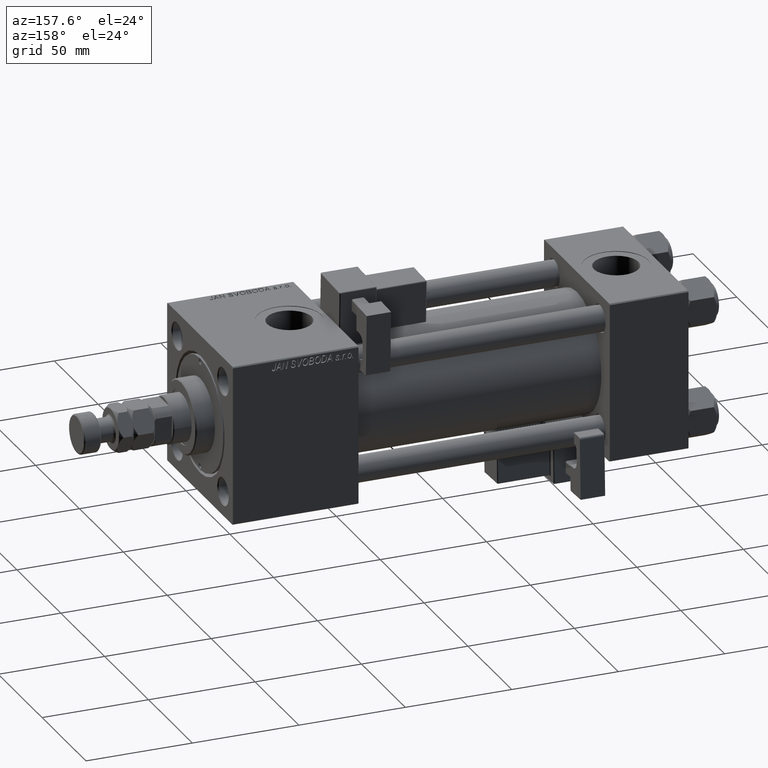
[diagram: clean part render]
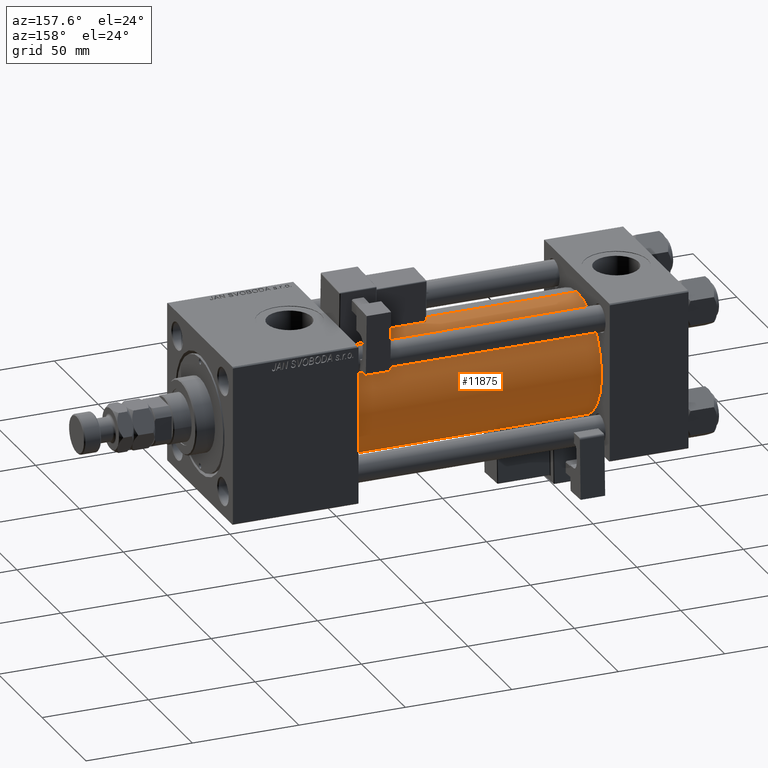
[diagram: same view with one face highlighted and labeled with its STEP entity id]
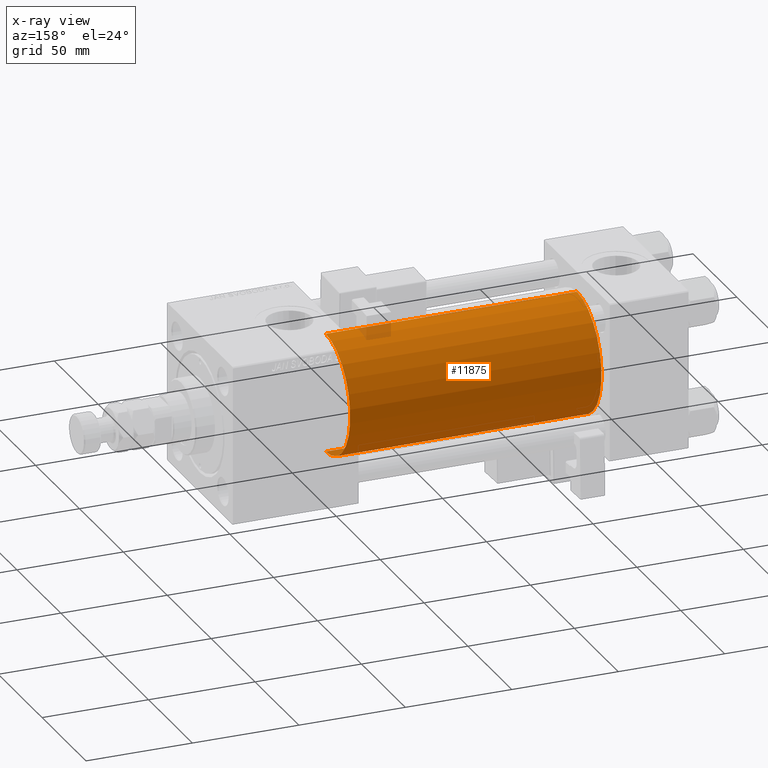
[diagram: x-ray of the same camera — body ghosted, the highlighted face saturated]
A machine part, auxiliary view. The second image highlights one B-rep face of the part: STEP entity #11875.
The next image is the same camera in x-ray: the body ghosted, the highlighted face saturated — about 1% of this face is hidden behind the body in this view.
In plain terms, the highlighted cylindrical surface (partial cylindrical patch) has radius 28 mm, axis along (-1, -0, -0).
Its self-contained STEP definition (entity closure, byte-faithful):
#464 = VERTEX_POINT ( 'NONE', #46510 ) ;
#1766 = DIRECTION ( 'NONE',  ( -1.000000000000000000, -0.000000000000000000, -0.000000000000000000 ) ) ;
#4939 = CARTESIAN_POINT ( 'NONE',  ( 155.0000000000000000, -2.602085213965210642E-15, 0.000000000000000000 ) ) ;
#5888 = CARTESIAN_POINT ( 'NONE',  ( 155.0000000000000000, -2.602085213965210642E-15, 0.000000000000000000 ) ) ;
#5932 = AXIS2_PLACEMENT_3D ( 'NONE', #4939, #20884, #21959 ) ;
#6874 = CARTESIAN_POINT ( 'NONE',  ( 155.0000000000000000, 8.269258236473784371E-16, -28.00000000000000000 ) ) ;
#9470 = DIRECTION ( 'NONE',  ( 0.000000000000000000, 0.000000000000000000, 1.000000000000000000 ) ) ;
#9857 = AXIS2_PLACEMENT_3D ( 'NONE', #5888, #1766, #9470 ) ;
#11643 = CARTESIAN_POINT ( 'NONE',  ( 155.0000000000000000, 8.269258236473784371E-16, -28.00000000000000000 ) ) ;
#11718 = EDGE_LOOP ( 'NONE', ( #51350, #29342, #29910, #44438 ) ) ;
#11875 = ADVANCED_FACE ( 'NONE', ( #21562 ), #34700, .T. ) ;
#12854 = EDGE_CURVE ( 'NONE', #23940, #464, #40425, .T. ) ;
#18209 = DIRECTION ( 'NONE',  ( -1.000000000000000000, -0.000000000000000000, -0.000000000000000000 ) ) ;
#19232 = CARTESIAN_POINT ( 'NONE',  ( 37.00000000000000711, -2.602085213965210642E-15, 0.000000000000000000 ) ) ;
#20884 = DIRECTION ( 'NONE',  ( 1.000000000000000000, 0.000000000000000000, 0.000000000000000000 ) ) ;
#21298 = VECTOR ( 'NONE', #31400, 1000.000000000000000 ) ;
#21562 = FACE_OUTER_BOUND ( 'NONE', #11718, .T. ) ;
#21959 = DIRECTION ( 'NONE',  ( 0.000000000000000000, 0.000000000000000000, -1.000000000000000000 ) ) ;
#23940 = VERTEX_POINT ( 'NONE', #6874 ) ;
#27960 = EDGE_CURVE ( 'NONE', #464, #46994, #35327, .T. ) ;
#29342 = ORIENTED_EDGE ( 'NONE', *, *, #12854, .T. ) ;
#29910 = ORIENTED_EDGE ( 'NONE', *, *, #27960, .T. ) ;
#31400 = DIRECTION ( 'NONE',  ( -1.000000000000000000, -0.000000000000000000, -0.000000000000000000 ) ) ;
#32635 = EDGE_CURVE ( 'NONE', #36152, #46994, #46710, .T. ) ;
#33590 = CARTESIAN_POINT ( 'NONE',  ( 37.00000000000000711, -2.602085213965210642E-15, 28.00000000000000000 ) ) ;
#34389 = CARTESIAN_POINT ( 'NONE',  ( 155.0000000000000000, -2.602085213965210642E-15, 28.00000000000000000 ) ) ;
#34700 = CYLINDRICAL_SURFACE ( 'NONE', #9857, 28.00000000000000000 ) ;
#35327 = CIRCLE ( 'NONE', #49325, 28.00000000000000000 ) ;
#36152 = VERTEX_POINT ( 'NONE', #36290 ) ;
#36290 = CARTESIAN_POINT ( 'NONE',  ( 155.0000000000000000, -2.602085213965210642E-15, 28.00000000000000000 ) ) ;
#40312 = DIRECTION ( 'NONE',  ( 1.000000000000000000, -0.000000000000000000, 0.000000000000000000 ) ) ;
#40425 = LINE ( 'NONE', #11643, #21298 ) ;
#41628 = VECTOR ( 'NONE', #18209, 1000.000000000000000 ) ;
#44438 = ORIENTED_EDGE ( 'NONE', *, *, #32635, .F. ) ;
#46510 = CARTESIAN_POINT ( 'NONE',  ( 37.00000000000000711, 8.269258236473784371E-16, -28.00000000000000000 ) ) ;
#46710 = LINE ( 'NONE', #34389, #41628 ) ;
#46994 = VERTEX_POINT ( 'NONE', #33590 ) ;
#49325 = AXIS2_PLACEMENT_3D ( 'NONE', #19232, #40312, #52635 ) ;
#50799 = EDGE_CURVE ( 'NONE', #23940, #36152, #53193, .T. ) ;
#51350 = ORIENTED_EDGE ( 'NONE', *, *, #50799, .F. ) ;
#52635 = DIRECTION ( 'NONE',  ( 0.000000000000000000, 0.000000000000000000, 1.000000000000000000 ) ) ;
#53193 = CIRCLE ( 'NONE', #5932, 28.00000000000000000 ) ;